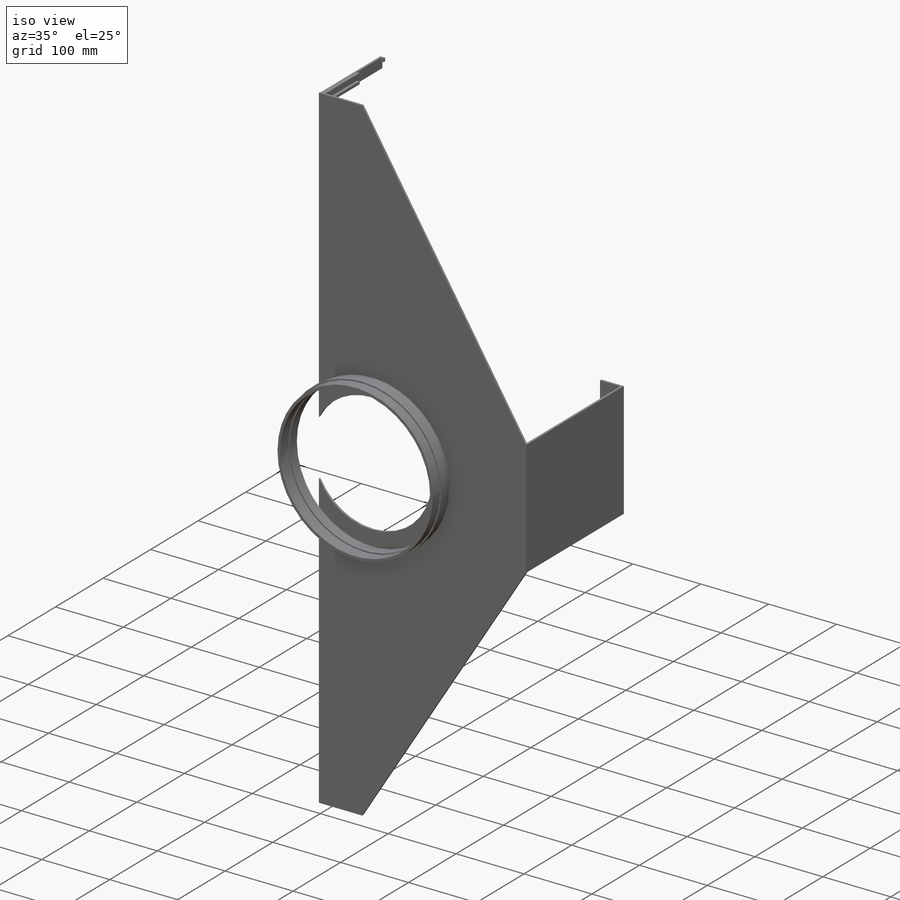
[diagram: iso view]
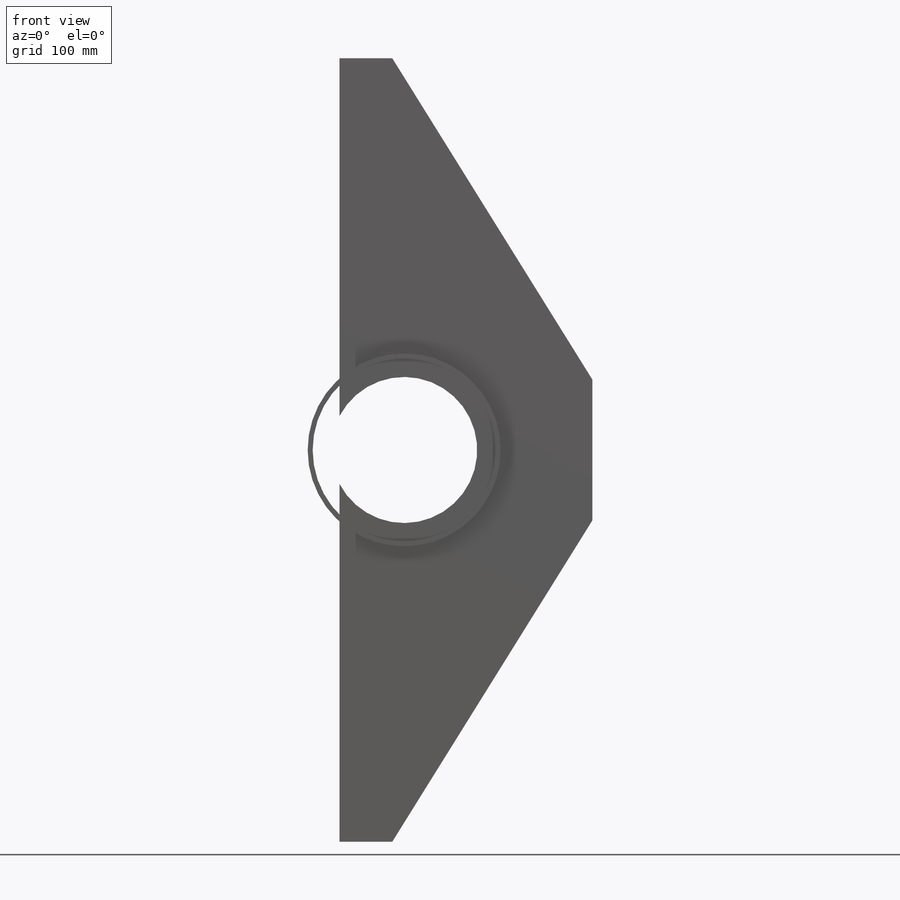
[diagram: front view]
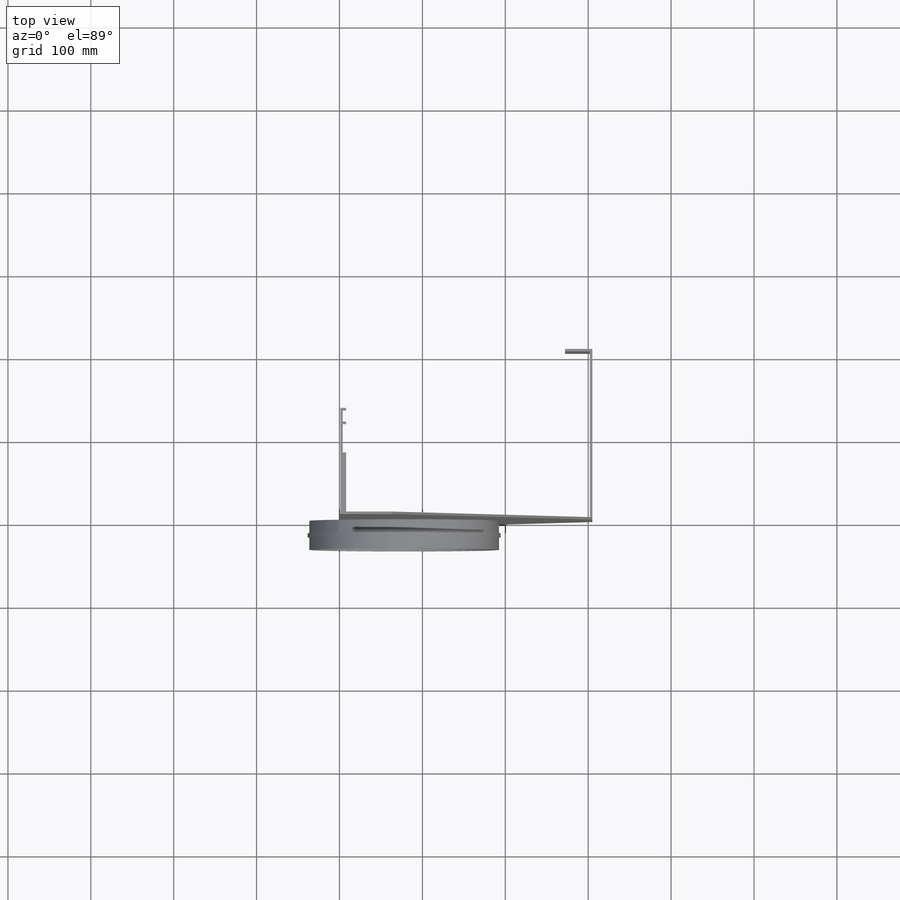
[diagram: top view]
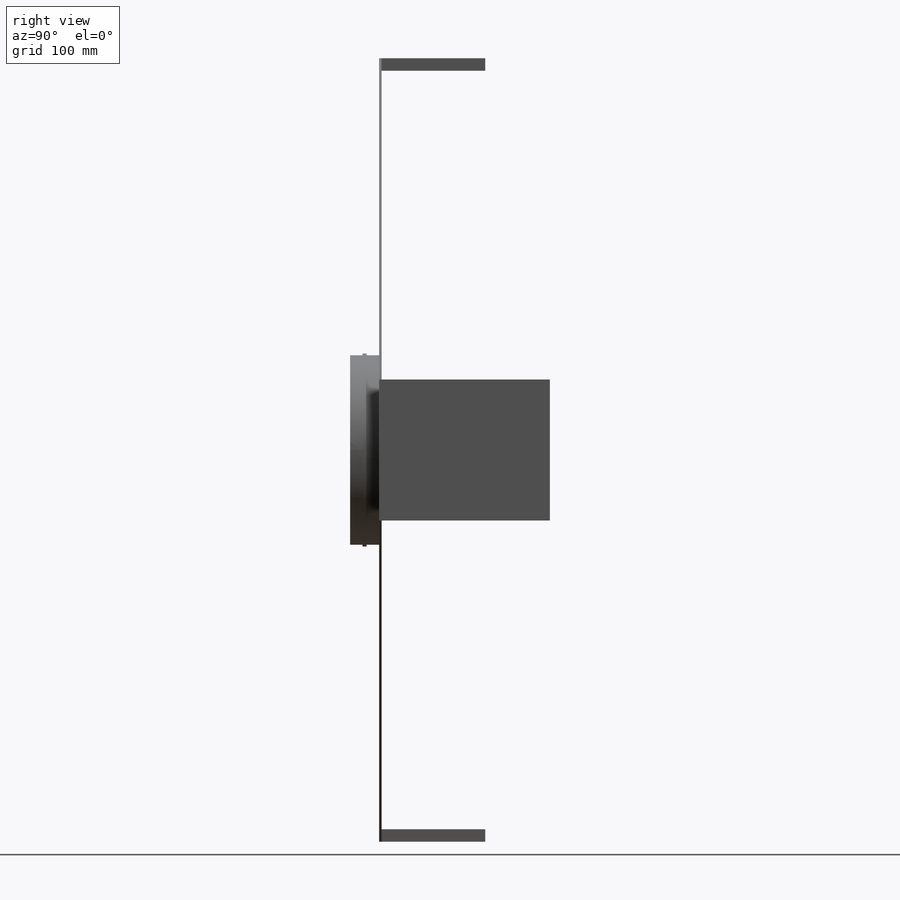
[diagram: right view]
SOLIDWORKS PART (.sldprt)
format: sldprt  version: not decoded by parser v0  size: 372,224 bytes
history: native  units: mm
features: sketch x11, extrude x8, cut_extrude x3, material x1 (+16 scaffold rows collapsed)
feature tree (39):
  scaffold x16  (default folders/planes/origin — collapsed)
  material  "6063-T4"
  sketch  "Sketch1"  dims[D1=305.0mm D2=945.0mm]
  extrude  "Extrude1"  Depth=3mm
  sketch  "Sketch2"  dims[D2=228.74mm D3=220.74mm D4=114.4mm D1=78.0mm]
  extrude  "Extrude2"  Depth=15mm
  sketch  "Sketch3"  dims[D1=1.0mm D2=3.0mm FROM_TOP=15.0mm D3=15.0mm]
  extrude  "Extrude3"  Depth=125mm
  sketch  "Sketch4"  dims[D1=3.0mm D2=5.0mm D3=3.0mm D4=6.0mm]
  extrude  "Extrude4"  Depth=4mm
  sketch  "Sketch5"  dims[SIDE=85.0mm D1=85.0mm D2=3.0mm]
  extrude  "Extrude5"  Depth=203mm
  sketch  "Sketch6"  dims[D1=3.0mm]
  extrude  "Extrude6"  Depth=30mm
  sketch  "Sketch7"
  cut_extrude  "Extrude7"  [1 undecoded]
  sketch  "Sketch13"
  cut_extrude  "Extrude10"  [1 undecoded]
  sketch  "Sketch22"  dims[D1=114.37mm]
  extrude  "Extrude17"  Depth=5mm
  sketch  "Sketch23"
  extrude  "Extrude18"  Depth=15mm
  sketch  "Sketch19"
  cut_extrude  "Extrude16"  Depth=100mm DIA=100mm
decode coverage: 16 of 22 modeling features carry decoded parameters
note: 2 parameter values undecoded
note: suppression state not decoded; provenance and decode notes live in map.json
